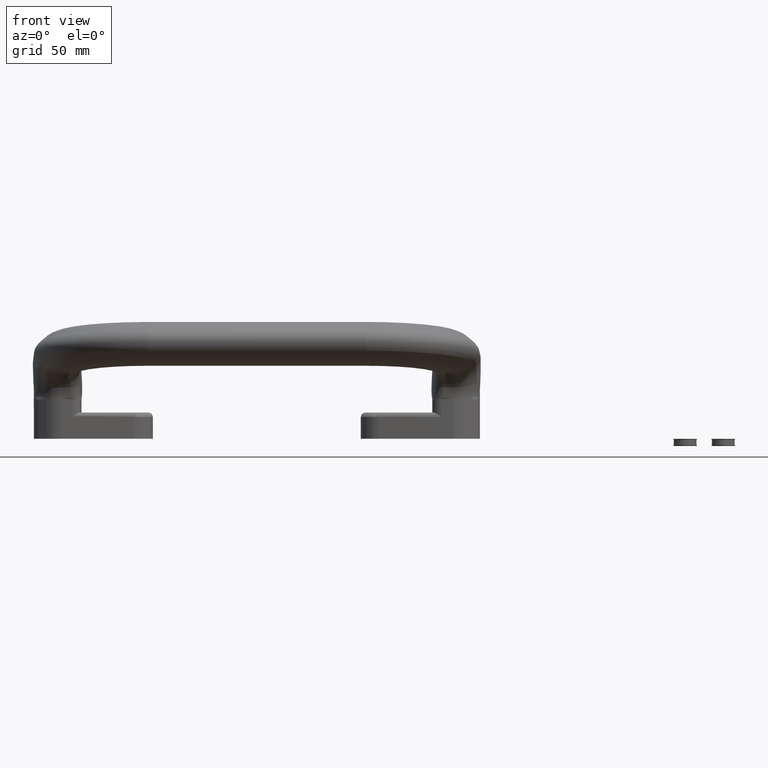
[diagram: clean part render]
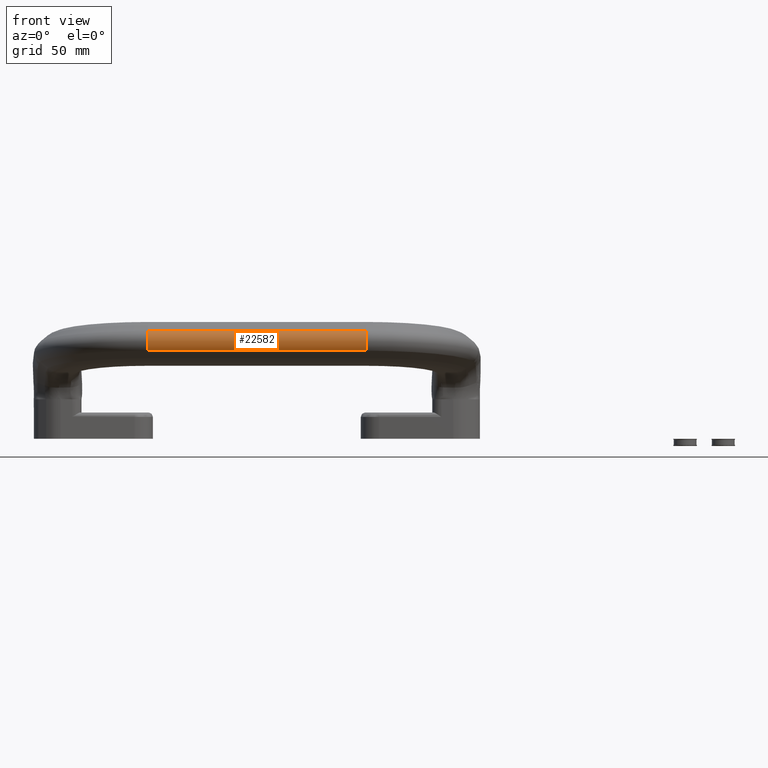
[diagram: same view with one face highlighted and labeled with its STEP entity id]
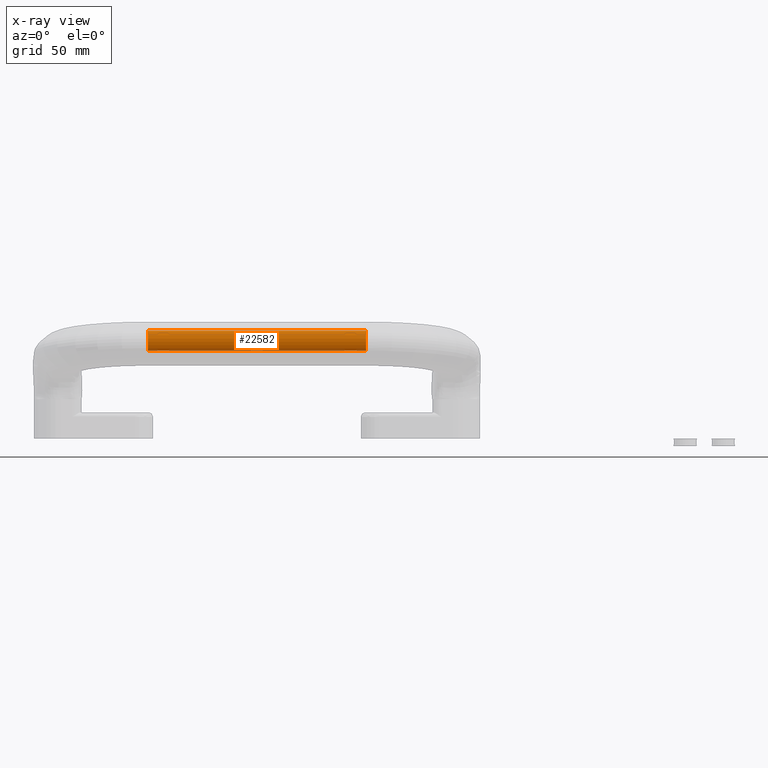
[diagram: x-ray of the same camera — body ghosted, the highlighted face saturated]
A machine part, front view. The second image highlights one B-rep face of the part: STEP entity #22582.
The next image is the same camera in x-ray: the body ghosted, the highlighted face saturated — about 0% of this face is hidden behind the body in this view.
In plain terms, the highlighted cylindrical surface (edge-blend (fillet) strip) has radius 8.7316 mm, axis along (1, 0, 0).
Its self-contained STEP definition (entity closure, byte-faithful):
#2362=FACE_OUTER_BOUND('',#3764,.T.);
#3764=EDGE_LOOP('',(#15707,#15708,#15709,#15710));
#5474=LINE('',#36274,#6747);
#5475=LINE('',#36278,#6748);
#6747=VECTOR('',#27248,0.00155000310000955);
#6748=VECTOR('',#27253,0.00155000310000955);
#7409=CIRCLE('',#23920,0.343763696881);
#7416=CIRCLE('',#23937,0.343763697193);
#9127=VERTEX_POINT('',#36232);
#9128=VERTEX_POINT('',#36236);
#9137=VERTEX_POINT('',#36272);
#9138=VERTEX_POINT('',#36276);
#11452=EDGE_CURVE('',#9127,#9128,#7409,.T.);
#11471=EDGE_CURVE('',#9127,#9137,#5474,.T.);
#11472=EDGE_CURVE('',#9137,#9138,#7416,.T.);
#11473=EDGE_CURVE('',#9128,#9138,#5475,.F.);
#15707=ORIENTED_EDGE('',*,*,#11452,.F.);
#15708=ORIENTED_EDGE('',*,*,#11471,.T.);
#15709=ORIENTED_EDGE('',*,*,#11472,.T.);
#15710=ORIENTED_EDGE('',*,*,#11473,.F.);
#20563=CYLINDRICAL_SURFACE('',#23936,0.343763697193);
#22582=ADVANCED_FACE('',(#2362),#20563,.T.);
#23920=AXIS2_PLACEMENT_3D('',#36237,#27204,#27205);
#23936=AXIS2_PLACEMENT_3D('',#36275,#27249,#27250);
#23937=AXIS2_PLACEMENT_3D('',#36277,#27251,#27252);
#27204=DIRECTION('center_axis',(0.999999999999899,4.47497915339671E-7,-5.42962741010998E-8));
#27205=DIRECTION('ref_axis',(4.47497915339672E-7,-0.9999999999999,0.));
#27248=DIRECTION('',(-1.,0.,0.));
#27249=DIRECTION('center_axis',(1.,0.,0.));
#27250=DIRECTION('ref_axis',(0.,-0.543920121476641,0.839136998024063));
#27251=DIRECTION('center_axis',(1.,0.,0.));
#27252=DIRECTION('ref_axis',(0.,-1.,0.));
#27253=DIRECTION('',(1.,0.,0.));
#36232=CARTESIAN_POINT('',(-0.359999987528621,-3.52571962616027,2.82957273189849));
#36236=CARTESIAN_POINT('',(-0.35999935502283,-3.58929584474752,2.30573439188903));
#36237=CARTESIAN_POINT('Origin',(-0.359998809384,-3.33875128122,2.54110797501));
#36272=CARTESIAN_POINT('',(-6.0775,-3.52571959212482,2.82957267948336));
#36274=CARTESIAN_POINT('',(-3.21875,-3.52571959213,2.82957267948));
#36275=CARTESIAN_POINT('Origin',(-6.0775,-3.33875128071,2.54110797496));
#36276=CARTESIAN_POINT('',(-6.0775,-3.5892960940139,2.3057341577021));
#36277=CARTESIAN_POINT('Origin',(-6.0775,-3.33875128071,2.54110797496));
#36278=CARTESIAN_POINT('',(-3.21875,-3.58929603273,2.30573421528));